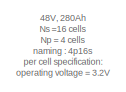
[diagram: root canvas - part 1/2, top left region]
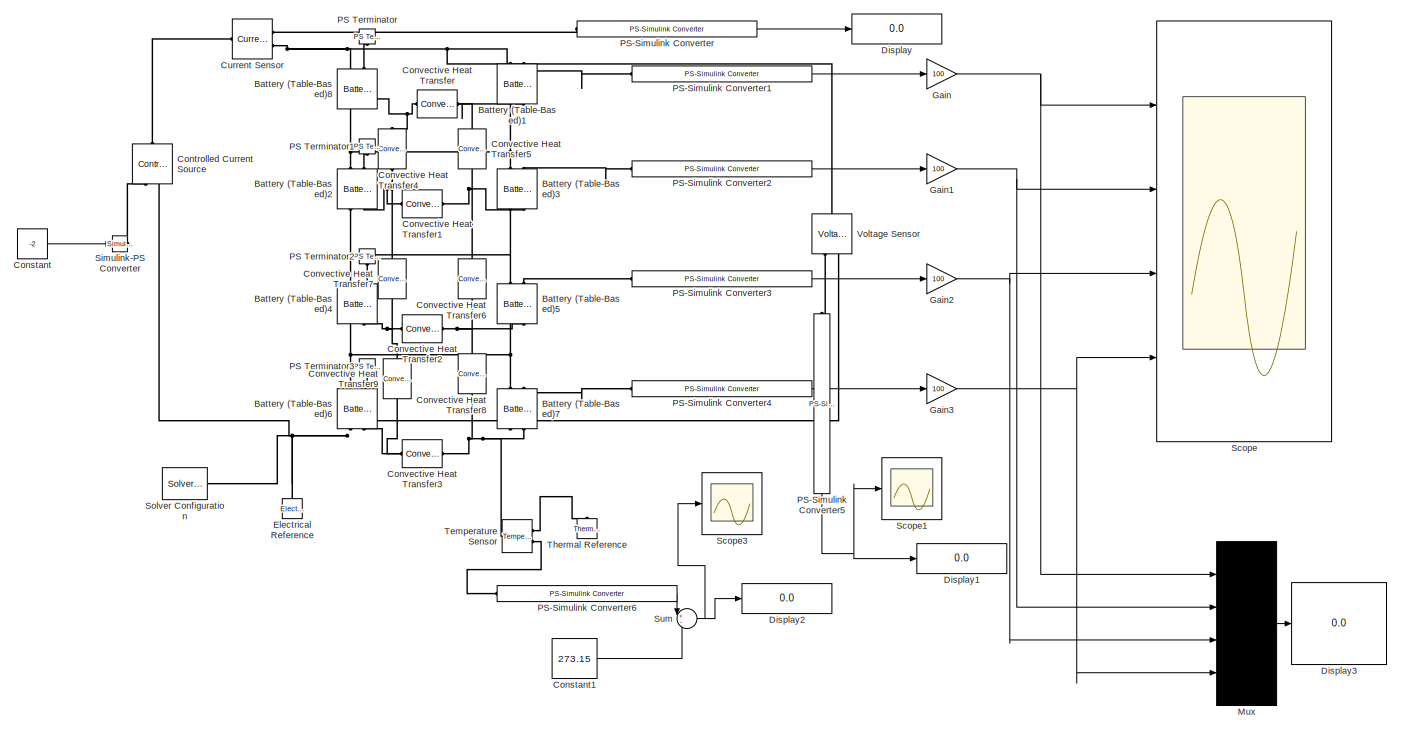
[diagram: root canvas - part 2/2, most of the canvas]
MODEL slx_d9ea34ed2cd5
KIND model
CONFIG AbsTol = auto
CONFIG EnableMultiTasking = off
CONFIG FixedStep = auto
CONFIG MaxStep = auto
CONFIG MinStep = auto
CONFIG RelTol = 1e-3
CONFIG SampleTimeConstraint = Unconstrained
CONFIG SolverName = VariableStepAuto
CONFIG StartTime = 0.0
CONFIG StopTime = 3600
BLOCK [Reference] Battery (Table-Based)1  REF=ee_lib/Sources/Battery
(Table-Based)
  AttributesFormatString = Panasonic:NCA103450
  NameLocation = right
  Ports = [0, 0, 0, 0, 0, 2, 2]
  SourceBlock = ee_lib/Sources/Battery\n(Table-Based)
  SourceProductBaseCode = PS
  SourceType = Battery\n(Table-Based)
  Tag = {'toolbox/physmod/elec/library/m/ee_lib_parts';'Sources/Battery__Table_Based_/Panasonic/NCA103450.xml'}
BLOCK [Reference] Battery (Table-Based)2  REF=ee_lib/Sources/Battery
(Table-Based)
  AttributesFormatString = Panasonic:NCA103450
  NameLocation = right
  Ports = [0, 0, 0, 0, 0, 2, 2]
  SourceBlock = ee_lib/Sources/Battery\n(Table-Based)
  SourceProductBaseCode = PS
  SourceType = Battery\n(Table-Based)
  Tag = {'toolbox/physmod/elec/library/m/ee_lib_parts';'Sources/Battery__Table_Based_/Panasonic/NCA103450.xml'}
BLOCK [Reference] Battery (Table-Based)3  REF=ee_lib/Sources/Battery
(Table-Based)
  AttributesFormatString = Panasonic:NCA103450
  NameLocation = right
  Ports = [0, 0, 0, 0, 0, 2, 2]
  SourceBlock = ee_lib/Sources/Battery\n(Table-Based)
  SourceProductBaseCode = PS
  SourceType = Battery\n(Table-Based)
  Tag = {'toolbox/physmod/elec/library/m/ee_lib_parts';'Sources/Battery__Table_Based_/Panasonic/NCA103450.xml'}
BLOCK [Reference] Battery (Table-Based)4  REF=ee_lib/Sources/Battery
(Table-Based)
  AttributesFormatString = Panasonic:NCA103450
  NameLocation = right
  Ports = [0, 0, 0, 0, 0, 2, 2]
  SourceBlock = ee_lib/Sources/Battery\n(Table-Based)
  SourceProductBaseCode = PS
  SourceType = Battery\n(Table-Based)
  Tag = {'toolbox/physmod/elec/library/m/ee_lib_parts';'Sources/Battery__Table_Based_/Panasonic/NCA103450.xml'}
BLOCK [Reference] Battery (Table-Based)5  REF=ee_lib/Sources/Battery
(Table-Based)
  AttributesFormatString = Panasonic:NCA103450
  NameLocation = right
  Ports = [0, 0, 0, 0, 0, 2, 2]
  SourceBlock = ee_lib/Sources/Battery\n(Table-Based)
  SourceProductBaseCode = PS
  SourceType = Battery\n(Table-Based)
  Tag = {'toolbox/physmod/elec/library/m/ee_lib_parts';'Sources/Battery__Table_Based_/Panasonic/NCA103450.xml'}
BLOCK [Reference] Battery (Table-Based)6  REF=ee_lib/Sources/Battery
(Table-Based)
  AttributesFormatString = Panasonic:NCA103450
  NameLocation = right
  Ports = [0, 0, 0, 0, 0, 2, 2]
  SourceBlock = ee_lib/Sources/Battery\n(Table-Based)
  SourceProductBaseCode = PS
  SourceType = Battery\n(Table-Based)
  Tag = {'toolbox/physmod/elec/library/m/ee_lib_parts';'Sources/Battery__Table_Based_/Panasonic/NCA103450.xml'}
BLOCK [Reference] Battery (Table-Based)7  REF=ee_lib/Sources/Battery
(Table-Based)
  AttributesFormatString = Panasonic:NCA103450
  NameLocation = right
  Ports = [0, 0, 0, 0, 0, 2, 2]
  SourceBlock = ee_lib/Sources/Battery\n(Table-Based)
  SourceProductBaseCode = PS
  SourceType = Battery\n(Table-Based)
  Tag = {'toolbox/physmod/elec/library/m/ee_lib_parts';'Sources/Battery__Table_Based_/Panasonic/NCA103450.xml'}
BLOCK [Reference] Battery (Table-Based)8  REF=ee_lib/Sources/Battery
(Table-Based)
  AttributesFormatString = Panasonic:NCA103450
  NameLocation = right
  Ports = [0, 0, 0, 0, 0, 2, 2]
  SourceBlock = ee_lib/Sources/Battery\n(Table-Based)
  SourceProductBaseCode = PS
  SourceType = Battery\n(Table-Based)
  Tag = {'toolbox/physmod/elec/library/m/ee_lib_parts';'Sources/Battery__Table_Based_/Panasonic/NCA103450.xml'}
BLOCK [Constant] Constant
  Value = -2
BLOCK [Constant] Constant1
  Value = 273.15
BLOCK [Reference] Controlled Current Source  REF=fl_lib/Electrical/Electrical Sources/Controlled Current
Source
  NameLocation = right
  Ports = [0, 0, 0, 0, 0, 1, 2]
  SourceBlock = fl_lib/Electrical/Electrical Sources/Controlled Current\nSource
  SourceProductBaseCode = SS
  SourceType = Controlled Current\nSource
BLOCK [Reference] Convective Heat Transfer  REF=fl_lib/Thermal/Thermal Elements/Convective Heat
Transfer
  Ports = [0, 0, 0, 0, 0, 1, 1]
  SourceBlock = fl_lib/Thermal/Thermal Elements/Convective Heat\nTransfer
  SourceProductBaseCode = SS
  SourceType = Convective Heat\nTransfer
BLOCK [Reference] Convective Heat Transfer1  REF=fl_lib/Thermal/Thermal Elements/Convective Heat
Transfer
  Ports = [0, 0, 0, 0, 0, 1, 1]
  SourceBlock = fl_lib/Thermal/Thermal Elements/Convective Heat\nTransfer
  SourceProductBaseCode = SS
  SourceType = Convective Heat\nTransfer
BLOCK [Reference] Convective Heat Transfer2  REF=fl_lib/Thermal/Thermal Elements/Convective Heat
Transfer
  Ports = [0, 0, 0, 0, 0, 1, 1]
  SourceBlock = fl_lib/Thermal/Thermal Elements/Convective Heat\nTransfer
  SourceProductBaseCode = SS
  SourceType = Convective Heat\nTransfer
BLOCK [Reference] Convective Heat Transfer3  REF=fl_lib/Thermal/Thermal Elements/Convective Heat
Transfer
  Ports = [0, 0, 0, 0, 0, 1, 1]
  SourceBlock = fl_lib/Thermal/Thermal Elements/Convective Heat\nTransfer
  SourceProductBaseCode = SS
  SourceType = Convective Heat\nTransfer
BLOCK [Reference] Convective Heat Transfer4  REF=fl_lib/Thermal/Thermal Elements/Convective Heat
Transfer
  NameLocation = left
  Ports = [0, 0, 0, 0, 0, 1, 1]
  SourceBlock = fl_lib/Thermal/Thermal Elements/Convective Heat\nTransfer
  SourceProductBaseCode = SS
  SourceType = Convective Heat\nTransfer
BLOCK [Reference] Convective Heat Transfer5  REF=fl_lib/Thermal/Thermal Elements/Convective Heat
Transfer
  NameLocation = left
  Ports = [0, 0, 0, 0, 0, 1, 1]
  SourceBlock = fl_lib/Thermal/Thermal Elements/Convective Heat\nTransfer
  SourceProductBaseCode = SS
  SourceType = Convective Heat\nTransfer
BLOCK [Reference] Convective Heat Transfer6  REF=fl_lib/Thermal/Thermal Elements/Convective Heat
Transfer
  NameLocation = left
  Ports = [0, 0, 0, 0, 0, 1, 1]
  SourceBlock = fl_lib/Thermal/Thermal Elements/Convective Heat\nTransfer
  SourceProductBaseCode = SS
  SourceType = Convective Heat\nTransfer
BLOCK [Reference] Convective Heat Transfer7  REF=fl_lib/Thermal/Thermal Elements/Convective Heat
Transfer
  NameLocation = left
  Ports = [0, 0, 0, 0, 0, 1, 1]
  SourceBlock = fl_lib/Thermal/Thermal Elements/Convective Heat\nTransfer
  SourceProductBaseCode = SS
  SourceType = Convective Heat\nTransfer
BLOCK [Reference] Convective Heat Transfer8  REF=fl_lib/Thermal/Thermal Elements/Convective Heat
Transfer
  NameLocation = left
  Ports = [0, 0, 0, 0, 0, 1, 1]
  SourceBlock = fl_lib/Thermal/Thermal Elements/Convective Heat\nTransfer
  SourceProductBaseCode = SS
  SourceType = Convective Heat\nTransfer
BLOCK [Reference] Convective Heat Transfer9  REF=fl_lib/Thermal/Thermal Elements/Convective Heat
Transfer
  NameLocation = left
  Ports = [0, 0, 0, 0, 0, 1, 1]
  SourceBlock = fl_lib/Thermal/Thermal Elements/Convective Heat\nTransfer
  SourceProductBaseCode = SS
  SourceType = Convective Heat\nTransfer
BLOCK [Reference] Current Sensor  REF=fl_lib/Electrical/Electrical Sensors/Current Sensor
  Ports = [0, 0, 0, 0, 0, 1, 2]
  SourceBlock = fl_lib/Electrical/Electrical Sensors/Current Sensor
  SourceProductBaseCode = SS
  SourceType = Current Sensor
BLOCK [Display] Display
  Decimation = 1
  Ports = [1]
BLOCK [Display] Display1
  Decimation = 1
  Ports = [1]
BLOCK [Display] Display2
  Decimation = 1
  Ports = [1]
BLOCK [Display] Display3
  Decimation = 1
  Ports = [1]
BLOCK [Reference] Electrical Reference  REF=fl_lib/Electrical/Electrical Elements/Electrical Reference
  NameLocation = right
  Ports = [0, 0, 0, 0, 0, 1]
  SourceBlock = fl_lib/Electrical/Electrical Elements/Electrical Reference
  SourceProductBaseCode = SS
  SourceType = Electrical Reference
BLOCK [Gain] Gain
  Gain = 100
BLOCK [Gain] Gain1
  Gain = 100
BLOCK [Gain] Gain2
  Gain = 100
BLOCK [Gain] Gain3
  Gain = 100
BLOCK [Mux] Mux
  DisplayOption = bar
  Ports = [4, 1]
BLOCK [Reference] PS Terminator  REF=fl_lib/Physical Signals/Sinks/PS Terminator
  NameLocation = right
  Ports = [0, 0, 0, 0, 0, 1]
  SourceBlock = fl_lib/Physical Signals/Sinks/PS Terminator
  SourceProductBaseCode = SS
  SourceType = PS Terminator
BLOCK [Reference] PS Terminator1  REF=fl_lib/Physical Signals/Sinks/PS Terminator
  NameLocation = right
  Ports = [0, 0, 0, 0, 0, 1]
  SourceBlock = fl_lib/Physical Signals/Sinks/PS Terminator
  SourceProductBaseCode = SS
  SourceType = PS Terminator
BLOCK [Reference] PS Terminator2  REF=fl_lib/Physical Signals/Sinks/PS Terminator
  NameLocation = right
  Ports = [0, 0, 0, 0, 0, 1]
  SourceBlock = fl_lib/Physical Signals/Sinks/PS Terminator
  SourceProductBaseCode = SS
  SourceType = PS Terminator
BLOCK [Reference] PS Terminator3  REF=fl_lib/Physical Signals/Sinks/PS Terminator
  NameLocation = right
  Ports = [0, 0, 0, 0, 0, 1]
  SourceBlock = fl_lib/Physical Signals/Sinks/PS Terminator
  SourceProductBaseCode = SS
  SourceType = PS Terminator
BLOCK [Reference] PS-Simulink Converter  REF=nesl_utility/PS-Simulink
Converter
  Ports = [0, 1, 0, 0, 0, 1]
  SourceBlock = nesl_utility/PS-Simulink\nConverter
  SourceProductBaseCode = PW,SS
  SourceType = PS-Simulink\nConverter
BLOCK [Reference] PS-Simulink Converter1  REF=nesl_utility/PS-Simulink
Converter
  Ports = [0, 1, 0, 0, 0, 1]
  SourceBlock = nesl_utility/PS-Simulink\nConverter
  SourceProductBaseCode = PW,SS
  SourceType = PS-Simulink\nConverter
BLOCK [Reference] PS-Simulink Converter2  REF=nesl_utility/PS-Simulink
Converter
  Ports = [0, 1, 0, 0, 0, 1]
  SourceBlock = nesl_utility/PS-Simulink\nConverter
  SourceProductBaseCode = PW,SS
  SourceType = PS-Simulink\nConverter
BLOCK [Reference] PS-Simulink Converter3  REF=nesl_utility/PS-Simulink
Converter
  Ports = [0, 1, 0, 0, 0, 1]
  SourceBlock = nesl_utility/PS-Simulink\nConverter
  SourceProductBaseCode = PW,SS
  SourceType = PS-Simulink\nConverter
BLOCK [Reference] PS-Simulink Converter4  REF=nesl_utility/PS-Simulink
Converter
  Ports = [0, 1, 0, 0, 0, 1]
  SourceBlock = nesl_utility/PS-Simulink\nConverter
  SourceProductBaseCode = PW,SS
  SourceType = PS-Simulink\nConverter
BLOCK [Reference] PS-Simulink Converter5  REF=nesl_utility/PS-Simulink
Converter
  NameLocation = left
  Ports = [0, 1, 0, 0, 0, 1]
  SourceBlock = nesl_utility/PS-Simulink\nConverter
  SourceProductBaseCode = PW,SS
  SourceType = PS-Simulink\nConverter
BLOCK [Reference] PS-Simulink Converter6  REF=nesl_utility/PS-Simulink
Converter
  Ports = [0, 1, 0, 0, 0, 1]
  SourceBlock = nesl_utility/PS-Simulink\nConverter
  SourceProductBaseCode = PW,SS
  SourceType = PS-Simulink\nConverter
BLOCK [Scope] Scope
  Floating = off
  NumInputPorts = 4
  Ports = [4]
  ScopeSpecificationString = Simulink.scopes.TimeScopeBlockCfg('CurrentConfiguration', extmgr.ConfigurationSet(extmgr.Configuration('Core','General UI',true),extmgr.Configuration('Core','Source UI',true),extmgr.Configuration('Sources','WiredSimulink',true),extmgr.Configuration('Visuals','Time Domain',true,'SerializedDisplays',{struct('MinYLimReal','48.70494','MaxYLimReal','105.69945','YLabelReal','','MinYLimMag','48.70494','M...<+1358ch>
BLOCK [Scope] Scope1
  Floating = off
  NumInputPorts = 1
  Ports = [1]
  ScopeSpecificationString = Simulink.scopes.TimeScopeBlockCfg('CurrentConfiguration', extmgr.ConfigurationSet(extmgr.Configuration('Core','General UI',true),extmgr.Configuration('Core','Source UI',true),extmgr.Configuration('Sources','WiredSimulink',true,'DataLoggingVariableName','ScopeData1'),extmgr.Configuration('Visuals','Time Domain',true,'SerializedDisplays',{struct('MinYLimReal','14.25222','MaxYLimReal','16.35479','YLa...<+1387ch>
BLOCK [Scope] Scope3
  Floating = off
  NumInputPorts = 1
  Ports = [1]
  ScopeSpecificationString = Simulink.scopes.TimeScopeBlockCfg('CurrentConfiguration', extmgr.ConfigurationSet(extmgr.Configuration('Core','General UI',true),extmgr.Configuration('Core','Source UI',true),extmgr.Configuration('Sources','WiredSimulink',true,'DataLoggingVariableName','ScopeData3'),extmgr.Configuration('Visuals','Time Domain',true,'SerializedDisplays',{struct('MinYLimReal','-10','MaxYLimReal','10','YLabelReal',''...<+1317ch>
BLOCK [Reference] Simulink-PS Converter  REF=nesl_utility/Simulink-PS
Converter
  Ports = [1, 0, 0, 0, 0, 0, 1]
  SourceBlock = nesl_utility/Simulink-PS\nConverter
  SourceProductBaseCode = PW,SS
  SourceType = Simulink-PS\nConverter
BLOCK [Reference] Solver Configuration  REF=nesl_utility/Solver
Configuration
  Ports = [0, 0, 0, 0, 0, 0, 1]
  SourceBlock = nesl_utility/Solver\nConfiguration
  SourceProductBaseCode = PW,SS
  SourceType = Solver\nConfiguration
BLOCK [Sum] Sum
  Inputs = +-
  Ports = [2, 1]
BLOCK [Reference] Temperature Sensor  REF=fl_lib/Thermal/Thermal Sensors/Temperature Sensor
  Ports = [0, 0, 0, 0, 0, 1, 2]
  SourceBlock = fl_lib/Thermal/Thermal Sensors/Temperature Sensor
  SourceProductBaseCode = SS
  SourceType = Temperature Sensor
BLOCK [Reference] Thermal Reference  REF=fl_lib/Thermal/Thermal Elements/Thermal Reference
  NameLocation = right
  Ports = [0, 0, 0, 0, 0, 1]
  SourceBlock = fl_lib/Thermal/Thermal Elements/Thermal Reference
  SourceProductBaseCode = SS
  SourceType = Thermal Reference
BLOCK [Reference] Voltage Sensor  REF=fl_lib/Electrical/Electrical Sensors/Voltage Sensor
  NameLocation = right
  Ports = [0, 0, 0, 0, 0, 1, 2]
  SourceBlock = fl_lib/Electrical/Electrical Sensors/Voltage Sensor
  SourceProductBaseCode = SS
  SourceType = Voltage Sensor
ANNOTATION (root): 48V, 280Ah Ns =16 cells Np = 4 cells naming : 4p16s per cell specification: operating voltage = 3.2V cell capacity = 65Ah
LINE Constant1:1 -> Sum:2
LINE Constant:1 -> Simulink-PS Converter:1
NET Gain1:1 -> Mux:2, Scope:2
NET Gain2:1 -> Mux:3, Scope:3
NET Gain3:1 -> Mux:4, Scope:4
NET Gain:1 -> Mux:1, Scope:1
LINE Mux:1 -> Display3:1
LINE PS-Simulink Converter1:1 -> Gain:1
LINE PS-Simulink Converter2:1 -> Gain1:1
LINE PS-Simulink Converter3:1 -> Gain2:1
LINE PS-Simulink Converter4:1 -> Gain3:1
NET PS-Simulink Converter5:1 -> Display1:1, Scope1:1
LINE PS-Simulink Converter6:1 -> Sum:1
LINE PS-Simulink Converter:1 -> Display:1
NET Sum:1 -> Display2:1, Scope3:1
PNET net1: Battery (Table-Based)1:LConn1 -- Battery (Table-Based)8:LConn1 -- Current Sensor:RConn2 -- Voltage Sensor:LConn1
PLINE Battery (Table-Based)1:LConn2 -- PS-Simulink Converter1:LConn1
PNET net2: Battery (Table-Based)1:RConn1 -- Battery (Table-Based)2:LConn1 -- Battery (Table-Based)3:LConn1 -- Battery (Table-Based)8:RConn1
PNET net3: Battery (Table-Based)1:RConn2 -- Convective Heat Transfer5:LConn1 -- Convective Heat Transfer:RConn1
PLINE Battery (Table-Based)2:LConn2 -- PS Terminator1:LConn1
PNET net4: Battery (Table-Based)2:RConn1 -- Battery (Table-Based)3:RConn1 -- Battery (Table-Based)4:LConn1 -- Battery (Table-Based)5:LConn1
PNET net5: Battery (Table-Based)2:RConn2 -- Convective Heat Transfer1:LConn1 -- Convective Heat Transfer4:RConn1 -- Convective Heat Transfer7:LConn1
PLINE Battery (Table-Based)3:LConn2 -- PS-Simulink Converter2:LConn1
PNET net6: Battery (Table-Based)3:RConn2 -- Convective Heat Transfer1:RConn1 -- Convective Heat Transfer5:RConn1 -- Convective Heat Transfer6:LConn1
PLINE Battery (Table-Based)4:LConn2 -- PS Terminator2:LConn1
PNET net7: Battery (Table-Based)4:RConn1 -- Battery (Table-Based)5:RConn1 -- Battery (Table-Based)6:LConn1 -- Battery (Table-Based)7:LConn1
PNET net8: Battery (Table-Based)4:RConn2 -- Convective Heat Transfer2:LConn1 -- Convective Heat Transfer7:RConn1 -- Convective Heat Transfer9:LConn1
PLINE Battery (Table-Based)5:LConn2 -- PS-Simulink Converter3:LConn1
PNET net9: Battery (Table-Based)5:RConn2 -- Convective Heat Transfer2:RConn1 -- Convective Heat Transfer6:RConn1 -- Convective Heat Transfer8:LConn1
PLINE Battery (Table-Based)6:LConn2 -- PS Terminator3:LConn1
PNET net10: Battery (Table-Based)6:RConn1 -- Battery (Table-Based)7:RConn1 -- Controlled Current Source:RConn2 -- Electrical Reference:LConn1 -- Solver Configuration:RConn1 -- Voltage Sensor:RConn2
PNET net11: Battery (Table-Based)6:RConn2 -- Convective Heat Transfer3:LConn1 -- Convective Heat Transfer9:RConn1
PLINE Battery (Table-Based)7:LConn2 -- PS-Simulink Converter4:LConn1
PNET net12: Battery (Table-Based)7:RConn2 -- Convective Heat Transfer3:RConn1 -- Convective Heat Transfer8:RConn1 -- Temperature Sensor:LConn1
PLINE Battery (Table-Based)8:LConn2 -- PS Terminator:LConn1
PNET net13: Battery (Table-Based)8:RConn2 -- Convective Heat Transfer4:LConn1 -- Convective Heat Transfer:LConn1
PLINE Controlled Current Source:LConn1 -- Current Sensor:LConn1
PLINE Controlled Current Source:RConn1 -- Simulink-PS Converter:RConn1
PLINE Current Sensor:RConn1 -- PS-Simulink Converter:LConn1
PLINE PS-Simulink Converter5:LConn1 -- Voltage Sensor:RConn1
PLINE PS-Simulink Converter6:LConn1 -- Temperature Sensor:RConn2
PLINE Temperature Sensor:RConn1 -- Thermal Reference:LConn1
note: NET lines group one-source signal fan-out (src -> all destinations, sorted); 1:1 wires keep LINE; PNET lines group multi-terminal physical nets as a canonical sorted terminal list (undirected conserving connections); 2-terminal nets keep the pairwise PLINE form
